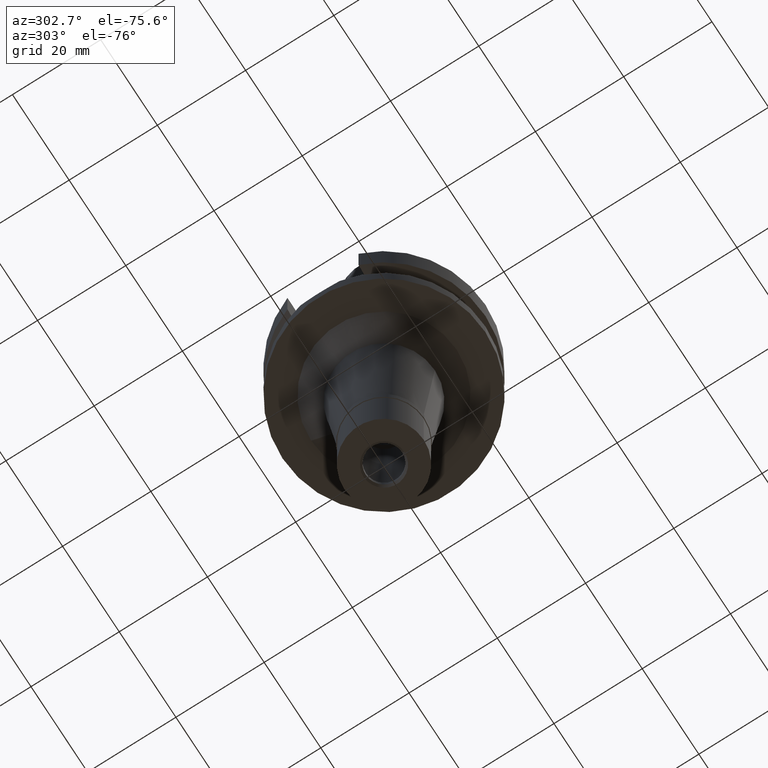
[diagram: clean part render]
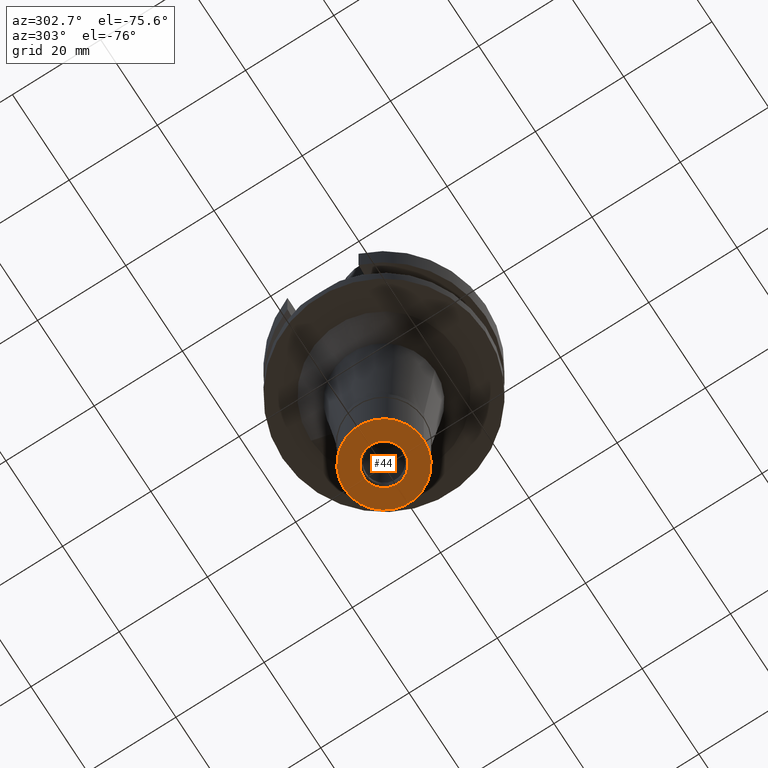
[diagram: same view with one face highlighted and labeled with its STEP entity id]
A machine part, auxiliary view. The second image highlights one B-rep face of the part: STEP entity #44.
In plain terms, the highlighted planar face has unit normal (0, 0, 1).
Its self-contained STEP definition (entity closure, byte-faithful):
#9 = EDGE_CURVE ( 'NONE', #1294, #1239, #645, .T. ) ;
#44 = ADVANCED_FACE ( 'NONE', ( #427, #2028 ), #2070, .F. ) ;
#68 = DIRECTION ( 'NONE',  ( 0.0000000000000000000, 0.0000000000000000000, -1.000000000000000000 ) ) ;
#104 = ORIENTED_EDGE ( 'NONE', *, *, #2074, .F. ) ;
#162 = AXIS2_PLACEMENT_3D ( 'NONE', #1617, #2305, #1167 ) ;
#281 = CARTESIAN_POINT ( 'NONE',  ( 0.0000000000000000000, -9.000000000000000000, -18.50000000000000000 ) ) ;
#294 = EDGE_CURVE ( 'NONE', #1511, #1985, #1801, .T. ) ;
#307 = DIRECTION ( 'NONE',  ( 0.0000000000000000000, 1.000000000000000000, 0.0000000000000000000 ) ) ;
#427 = FACE_OUTER_BOUND ( 'NONE', #2911, .T. ) ;
#490 = DIRECTION ( 'NONE',  ( 0.0000000000000000000, 0.0000000000000000000, 1.000000000000000000 ) ) ;
#591 = DIRECTION ( 'NONE',  ( 0.0000000000000000000, 0.0000000000000000000, 1.000000000000000000 ) ) ;
#645 = CIRCLE ( 'NONE', #1950, 9.000000000000000000 ) ;
#1167 = DIRECTION ( 'NONE',  ( 0.0000000000000000000, -1.000000000000000000, 0.0000000000000000000 ) ) ;
#1239 = VERTEX_POINT ( 'NONE', #281 ) ;
#1255 = DIRECTION ( 'NONE',  ( 0.0000000000000000000, -1.000000000000000000, 0.0000000000000000000 ) ) ;
#1264 = ORIENTED_EDGE ( 'NONE', *, *, #9, .F. ) ;
#1294 = VERTEX_POINT ( 'NONE', #2275 ) ;
#1397 = DIRECTION ( 'NONE',  ( 1.000000000000000000, 0.0000000000000000000, 0.0000000000000000000 ) ) ;
#1450 = CARTESIAN_POINT ( 'NONE',  ( 0.0000000000000000000, 0.0000000000000000000, -18.50000000000000000 ) ) ;
#1478 = AXIS2_PLACEMENT_3D ( 'NONE', #1450, #68, #307 ) ;
#1511 = VERTEX_POINT ( 'NONE', #1951 ) ;
#1569 = DIRECTION ( 'NONE',  ( 0.0000000000000000000, 0.0000000000000000000, 1.000000000000000000 ) ) ;
#1612 = CARTESIAN_POINT ( 'NONE',  ( 0.0000000000000000000, 0.0000000000000000000, -18.50000000000000000 ) ) ;
#1617 = CARTESIAN_POINT ( 'NONE',  ( 0.0000000000000000000, 0.0000000000000000000, -18.50000000000000000 ) ) ;
#1682 = ORIENTED_EDGE ( 'NONE', *, *, #294, .F. ) ;
#1731 = ORIENTED_EDGE ( 'NONE', *, *, #2498, .F. ) ;
#1801 = CIRCLE ( 'NONE', #162, 4.599999999999999645 ) ;
#1812 = AXIS2_PLACEMENT_3D ( 'NONE', #2645, #591, #1255 ) ;
#1829 = CARTESIAN_POINT ( 'NONE',  ( 0.0000000000000000000, 0.0000000000000000000, -18.50000000000000000 ) ) ;
#1950 = AXIS2_PLACEMENT_3D ( 'NONE', #1829, #1569, #2259 ) ;
#1951 = CARTESIAN_POINT ( 'NONE',  ( 0.0000000000000000000, -4.599999999999999645, -18.50000000000000000 ) ) ;
#1985 = VERTEX_POINT ( 'NONE', #2796 ) ;
#2028 = FACE_BOUND ( 'NONE', #2482, .T. ) ;
#2070 = PLANE ( 'NONE',  #2412 ) ;
#2074 = EDGE_CURVE ( 'NONE', #1239, #1294, #2099, .T. ) ;
#2099 = CIRCLE ( 'NONE', #1812, 9.000000000000000000 ) ;
#2259 = DIRECTION ( 'NONE',  ( 0.0000000000000000000, 1.000000000000000000, 0.0000000000000000000 ) ) ;
#2275 = CARTESIAN_POINT ( 'NONE',  ( 0.0000000000000000000, 9.000000000000000000, -18.50000000000000000 ) ) ;
#2305 = DIRECTION ( 'NONE',  ( 0.0000000000000000000, 0.0000000000000000000, -1.000000000000000000 ) ) ;
#2412 = AXIS2_PLACEMENT_3D ( 'NONE', #1612, #490, #1397 ) ;
#2482 = EDGE_LOOP ( 'NONE', ( #1731, #1682 ) ) ;
#2498 = EDGE_CURVE ( 'NONE', #1985, #1511, #2899, .T. ) ;
#2645 = CARTESIAN_POINT ( 'NONE',  ( 0.0000000000000000000, 0.0000000000000000000, -18.50000000000000000 ) ) ;
#2796 = CARTESIAN_POINT ( 'NONE',  ( 0.0000000000000000000, 4.599999999999999645, -18.50000000000000000 ) ) ;
#2899 = CIRCLE ( 'NONE', #1478, 4.599999999999999645 ) ;
#2911 = EDGE_LOOP ( 'NONE', ( #1264, #104 ) ) ;